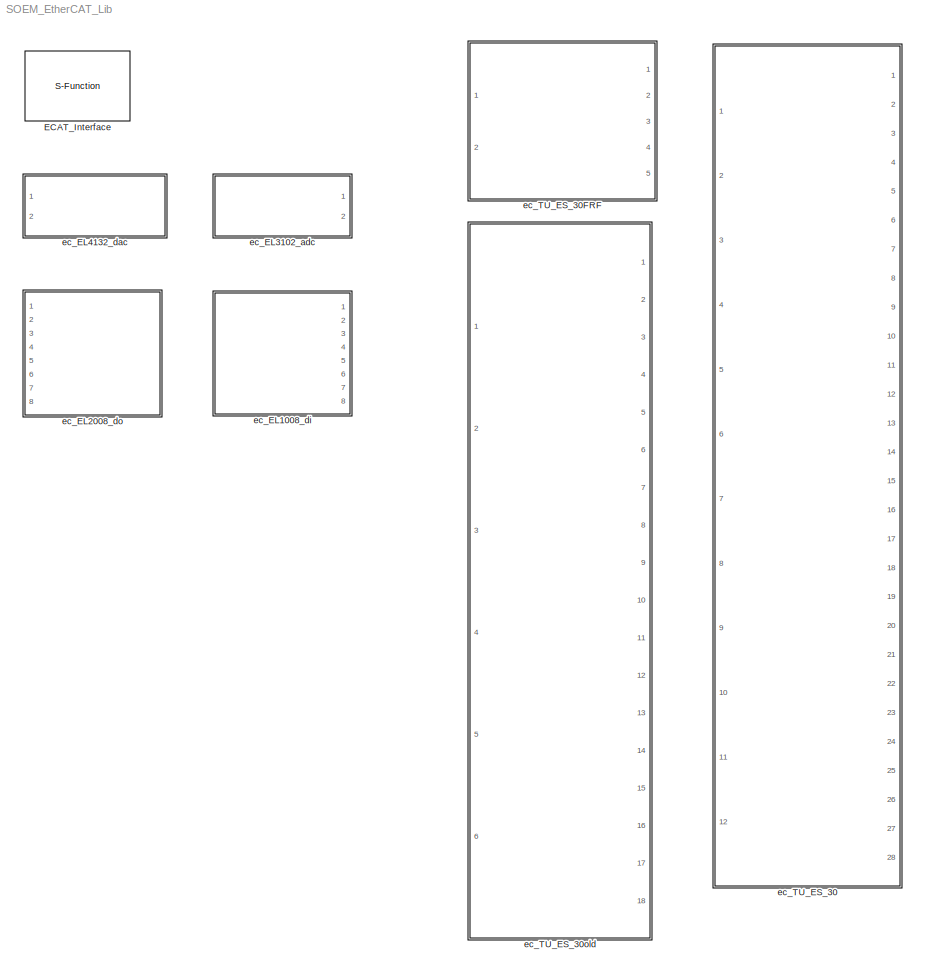
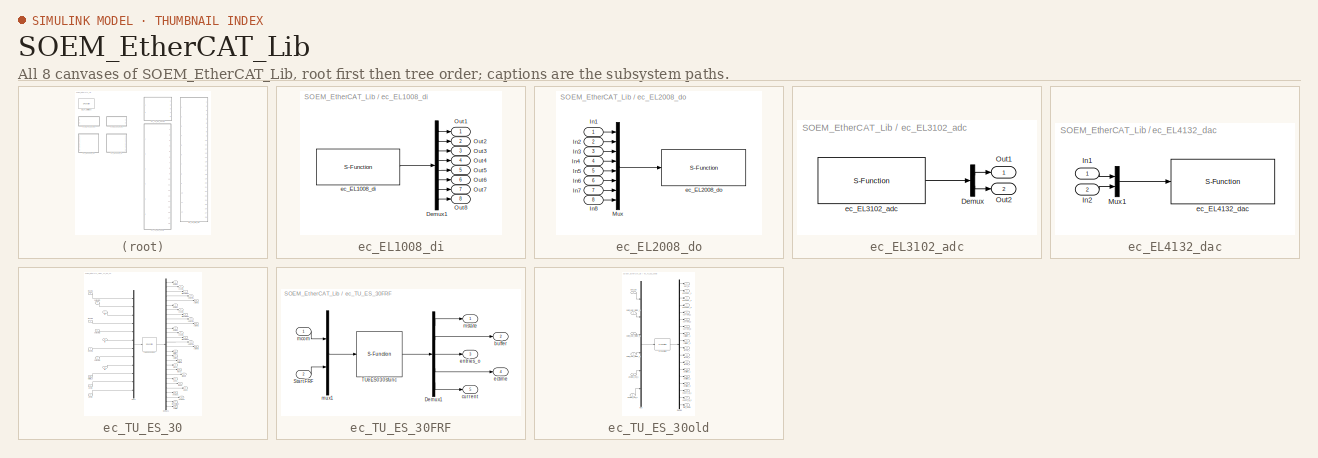
[diagram: thumbnail index - all 8 canvases of the model, root first then tree order]
MODEL SOEM_EtherCAT_Lib
KIND library
BLOCK [S-Function] ECAT_Interface
  EnableBusSupport = off
  FunctionName = ECAT_Interface
  Parameters = IFINTERFACE,TS
  Ports = [0, 1]
  Priority = 0
  SFunctionDeploymentMode = off
  SID = 1
  StopFcn = t_ = timer('Name','DLL_Unload_timer',...\n            'ExecutionMode','singleShot',...\n            'StartDelay',2,...\n            'StopFcn','try;delete(t_);clear(''t_'');catch;disp(''Unloading DLL Failed!'');end;',...\n            'TimerFcn','clear mex;'); \nstart(t_);
BLOCK [SubSystem] ec_EL1008_di
  Ports = [0, 8]
  RequestExecContextInheritance = off
  SID = 2
  Variant = off
BLOCK [Demux] ec_EL1008_di/Demux1
  DisplayOption = bar
  Outputs = 8
  Ports = [1, 8]
  SID = 3
BLOCK [Outport] ec_EL1008_di/Out1
  IconDisplay = Port number
  SID = 5
BLOCK [Outport] ec_EL1008_di/Out2
  IconDisplay = Port number
  Port = 2
  SID = 6
BLOCK [Outport] ec_EL1008_di/Out3
  IconDisplay = Port number
  Port = 3
  SID = 7
BLOCK [Outport] ec_EL1008_di/Out4
  IconDisplay = Port number
  Port = 4
  SID = 8
BLOCK [Outport] ec_EL1008_di/Out5
  IconDisplay = Port number
  Port = 5
  SID = 9
BLOCK [Outport] ec_EL1008_di/Out6
  IconDisplay = Port number
  Port = 6
  SID = 10
BLOCK [Outport] ec_EL1008_di/Out7
  IconDisplay = Port number
  Port = 7
  SID = 11
BLOCK [Outport] ec_EL1008_di/Out8
  IconDisplay = Port number
  Port = 8
  SID = 12
BLOCK [S-Function] ec_EL1008_di/ec_EL1008_di
  EnableBusSupport = off
  FunctionName = ec_EL1008_di
  Parameters = LINKID
  Ports = [0, 1]
  Priority = 1
  SFunctionDeploymentMode = off
  SID = 4
BLOCK [SubSystem] ec_EL2008_do
  Ports = [8]
  RequestExecContextInheritance = off
  SID = 13
  Variant = off
BLOCK [Inport] ec_EL2008_do/In1
  IconDisplay = Port number
  SID = 14
BLOCK [Inport] ec_EL2008_do/In2
  IconDisplay = Port number
  Port = 2
  SID = 15
BLOCK [Inport] ec_EL2008_do/In3
  IconDisplay = Port number
  Port = 3
  SID = 16
BLOCK [Inport] ec_EL2008_do/In4
  IconDisplay = Port number
  Port = 4
  SID = 17
BLOCK [Inport] ec_EL2008_do/In5
  IconDisplay = Port number
  Port = 5
  SID = 18
BLOCK [Inport] ec_EL2008_do/In6
  IconDisplay = Port number
  Port = 6
  SID = 19
BLOCK [Inport] ec_EL2008_do/In7
  IconDisplay = Port number
  Port = 7
  SID = 20
BLOCK [Inport] ec_EL2008_do/In8
  IconDisplay = Port number
  Port = 8
  SID = 21
BLOCK [Mux] ec_EL2008_do/Mux
  DisplayOption = bar
  Inputs = 8
  Ports = [8, 1]
  SID = 22
BLOCK [S-Function] ec_EL2008_do/ec_EL2008_do
  EnableBusSupport = off
  FunctionName = ec_EL2008_do
  Parameters = LINKID
  Ports = [1]
  Priority = 1
  SFunctionDeploymentMode = off
  SID = 23
BLOCK [SubSystem] ec_EL3102_adc
  Ports = [0, 2]
  RequestExecContextInheritance = off
  SID = 24
  Variant = off
BLOCK [Demux] ec_EL3102_adc/Demux
  DisplayOption = bar
  Outputs = 2
  Ports = [1, 2]
  SID = 25
BLOCK [Outport] ec_EL3102_adc/Out1
  IconDisplay = Port number
  SID = 27
BLOCK [Outport] ec_EL3102_adc/Out2
  IconDisplay = Port number
  Port = 2
  SID = 28
BLOCK [S-Function] ec_EL3102_adc/ec_EL3102_adc
  EnableBusSupport = off
  FunctionName = ec_EL3102_adc
  Parameters = LINKID
  Ports = [0, 1]
  Priority = 1
  SFunctionDeploymentMode = off
  SID = 26
BLOCK [SubSystem] ec_EL4132_dac
  Ports = [2]
  RequestExecContextInheritance = off
  SID = 29
  Variant = off
BLOCK [Inport] ec_EL4132_dac/In1
  IconDisplay = Port number
  SID = 30
BLOCK [Inport] ec_EL4132_dac/In2
  IconDisplay = Port number
  Port = 2
  SID = 31
BLOCK [Mux] ec_EL4132_dac/Mux1
  DisplayOption = bar
  Inputs = 2
  Ports = [2, 1]
  SID = 32
BLOCK [S-Function] ec_EL4132_dac/ec_EL4132_dac
  EnableBusSupport = off
  FunctionName = ec_EL4132_dac
  Parameters = LINKID
  Ports = [1]
  Priority = 1
  SFunctionDeploymentMode = off
  SID = 33
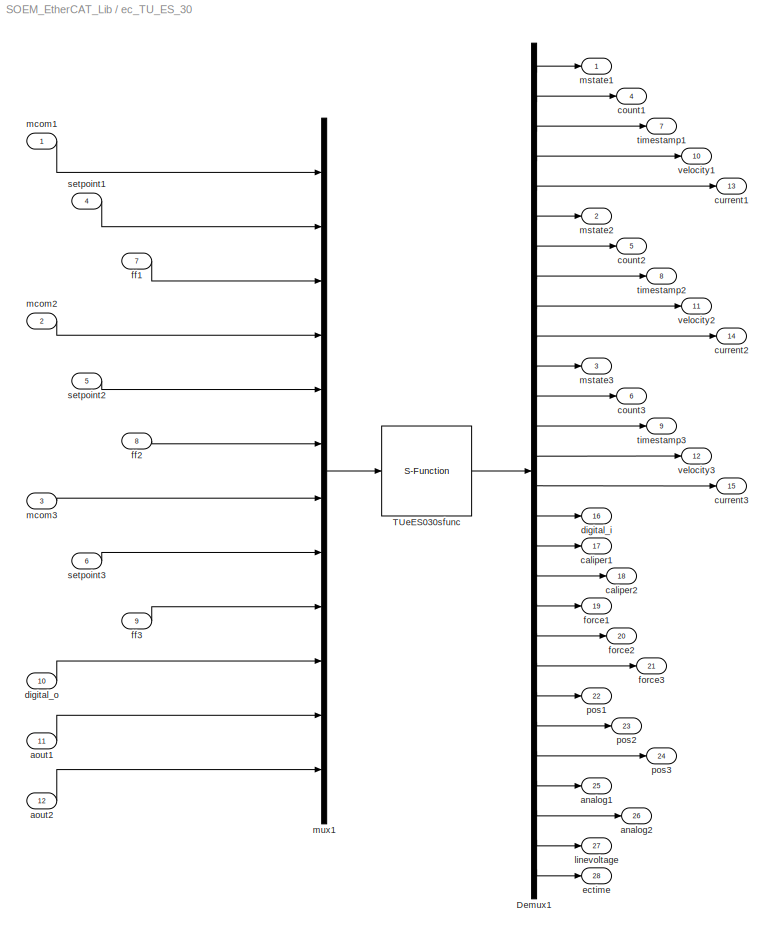
BLOCK [SubSystem] ec_TU_ES_30
  AncestorBlock = SERGIO_Lib/EtherCAT Blocks/ec_TU_ES_30
  Ports = [12, 28]
  RequestExecContextInheritance = off
  SID = 659
  Variant = off
BLOCK [Demux] ec_TU_ES_30/Demux1
  DisplayOption = bar
  Outputs = 28
  Ports = [1, 28]
  SID = 659:8047
BLOCK [S-Function] ec_TU_ES_30/TUeES030sfunc
  EnableBusSupport = off
  FunctionName = ec_TU_ES_030
  Parameters = link_id, slave_num, resistance, kv,pgain,igain,ilimit,encdir,encres,czero
  Ports = [1, 1]
  SFunctionDeploymentMode = off
  SID = 659:297
BLOCK [Outport] ec_TU_ES_30/analog1
  IconDisplay = Port number
  Port = 25
  SID = 659:8072
BLOCK [Outport] ec_TU_ES_30/analog2
  IconDisplay = Port number
  Port = 26
  SID = 659:8073
BLOCK [Inport] ec_TU_ES_30/aout1
  IconDisplay = Port number
  Port = 11
  SID = 659:8045
BLOCK [Inport] ec_TU_ES_30/aout2
  IconDisplay = Port number
  Port = 12
  SID = 659:8046
BLOCK [Outport] ec_TU_ES_30/caliper1
  IconDisplay = Port number
  Port = 17
  SID = 659:8064
BLOCK [Outport] ec_TU_ES_30/caliper2
  IconDisplay = Port number
  Port = 18
  SID = 659:8065
BLOCK [Outport] ec_TU_ES_30/count1
  IconDisplay = Port number
  Port = 4
  SID = 659:8049
BLOCK [Outport] ec_TU_ES_30/count2
  IconDisplay = Port number
  Port = 5
  SID = 659:8054
BLOCK [Outport] ec_TU_ES_30/count3
  IconDisplay = Port number
  Port = 6
  SID = 659:8059
BLOCK [Outport] ec_TU_ES_30/current1
  IconDisplay = Port number
  Port = 13
  SID = 659:8052
BLOCK [Outport] ec_TU_ES_30/current2
  IconDisplay = Port number
  Port = 14
  SID = 659:8057
BLOCK [Outport] ec_TU_ES_30/current3
  IconDisplay = Port number
  Port = 15
  SID = 659:8062
BLOCK [Outport] ec_TU_ES_30/digital_i
  IconDisplay = Port number
  Port = 16
  SID = 659:8063
BLOCK [Inport] ec_TU_ES_30/digital_o
  IconDisplay = Port number
  Port = 10
  SID = 659:8044
BLOCK [Outport] ec_TU_ES_30/ectime
  IconDisplay = Port number
  Port = 28
  SID = 659:8075
BLOCK [Inport] ec_TU_ES_30/ff1
  IconDisplay = Port number
  Port = 7
  SID = 659:8037
BLOCK [Inport] ec_TU_ES_30/ff2
  IconDisplay = Port number
  Port = 8
  SID = 659:8040
BLOCK [Inport] ec_TU_ES_30/ff3
  IconDisplay = Port number
  Port = 9
  SID = 659:8043
BLOCK [Outport] ec_TU_ES_30/force1
  IconDisplay = Port number
  Port = 19
  SID = 659:8066
BLOCK [Outport] ec_TU_ES_30/force2
  IconDisplay = Port number
  Port = 20
  SID = 659:8067
BLOCK [Outport] ec_TU_ES_30/force3
  IconDisplay = Port number
  Port = 21
  SID = 659:8068
BLOCK [Outport] ec_TU_ES_30/linevoltage
  IconDisplay = Port number
  Port = 27
  SID = 659:8074
BLOCK [Inport] ec_TU_ES_30/mcom1
  IconDisplay = Port number
  SID = 659:8035
BLOCK [Inport] ec_TU_ES_30/mcom2
  IconDisplay = Port number
  Port = 2
  SID = 659:8038
BLOCK [Inport] ec_TU_ES_30/mcom3
  IconDisplay = Port number
  Port = 3
  SID = 659:8041
BLOCK [Outport] ec_TU_ES_30/mstate1
  IconDisplay = Port number
  SID = 659:8048
BLOCK [Outport] ec_TU_ES_30/mstate2
  IconDisplay = Port number
  Port = 2
  SID = 659:8053
BLOCK [Outport] ec_TU_ES_30/mstate3
  IconDisplay = Port number
  Port = 3
  SID = 659:8058
BLOCK [Mux] ec_TU_ES_30/mux1
  DisplayOption = bar
  Inputs = 12
  Ports = [12, 1]
  SID = 659:8034
BLOCK [Outport] ec_TU_ES_30/pos1
  IconDisplay = Port number
  Port = 22
  SID = 659:8069
BLOCK [Outport] ec_TU_ES_30/pos2
  IconDisplay = Port number
  Port = 23
  SID = 659:8070
BLOCK [Outport] ec_TU_ES_30/pos3
  IconDisplay = Port number
  Port = 24
  SID = 659:8071
BLOCK [Inport] ec_TU_ES_30/setpoint1
  IconDisplay = Port number
  Port = 4
  SID = 659:8036
BLOCK [Inport] ec_TU_ES_30/setpoint2
  IconDisplay = Port number
  Port = 5
  SID = 659:8039
BLOCK [Inport] ec_TU_ES_30/setpoint3
  IconDisplay = Port number
  Port = 6
  SID = 659:8042
BLOCK [Outport] ec_TU_ES_30/timestamp1
  IconDisplay = Port number
  Port = 7
  SID = 659:8050
BLOCK [Outport] ec_TU_ES_30/timestamp2
  IconDisplay = Port number
  Port = 8
  SID = 659:8055
BLOCK [Outport] ec_TU_ES_30/timestamp3
  IconDisplay = Port number
  Port = 9
  SID = 659:8060
BLOCK [Outport] ec_TU_ES_30/velocity1
  IconDisplay = Port number
  Port = 10
  SID = 659:8051
BLOCK [Outport] ec_TU_ES_30/velocity2
  IconDisplay = Port number
  Port = 11
  SID = 659:8056
BLOCK [Outport] ec_TU_ES_30/velocity3
  IconDisplay = Port number
  Port = 12
  SID = 659:8061
BLOCK [SubSystem] ec_TU_ES_30FRF
  AncestorBlock = SERGIO_Lib/EtherCAT Blocks/ec_TU_ES_30FRF
  Ports = [2, 5]
  RequestExecContextInheritance = off
  SID = 657
  Variant = off
BLOCK [Demux] ec_TU_ES_30FRF/Demux1
  DisplayOption = bar
  Outputs = [1 1 1 1 22]
  Ports = [1, 5]
  SID = 657:8080
BLOCK [Inport] ec_TU_ES_30FRF/Start FRF
  IconDisplay = Port number
  Port = 2
  SID = 657:8078
BLOCK [S-Function] ec_TU_ES_30FRF/TUeES030sfunc
  EnableBusSupport = off
  FunctionName = ec_TU_ES_030FRF
  Parameters = link_id, slave_num, resistance, kv,pgain,igain,ilimit,encdir,encres,czero, setpts,numsets
  Ports = [1, 1]
  SFunctionDeploymentMode = off
  SID = 657:297
BLOCK [Outport] ec_TU_ES_30FRF/buffer
  IconDisplay = Port number
  Port = 2
  SID = 657:8082
BLOCK [Outport] ec_TU_ES_30FRF/current
  IconDisplay = Port number
  Port = 5
  SID = 657:8085
BLOCK [Outport] ec_TU_ES_30FRF/ectime
  IconDisplay = Port number
  Port = 4
  SID = 657:8084
BLOCK [Outport] ec_TU_ES_30FRF/entries_o
  IconDisplay = Port number
  Port = 3
  SID = 657:8083
BLOCK [Inport] ec_TU_ES_30FRF/mcom
  IconDisplay = Port number
  SID = 657:8077
BLOCK [Outport] ec_TU_ES_30FRF/mstate
  IconDisplay = Port number
  SID = 657:8081
BLOCK [Mux] ec_TU_ES_30FRF/mux1
  DisplayOption = bar
  Inputs = 2
  Ports = [2, 1]
  SID = 657:8076
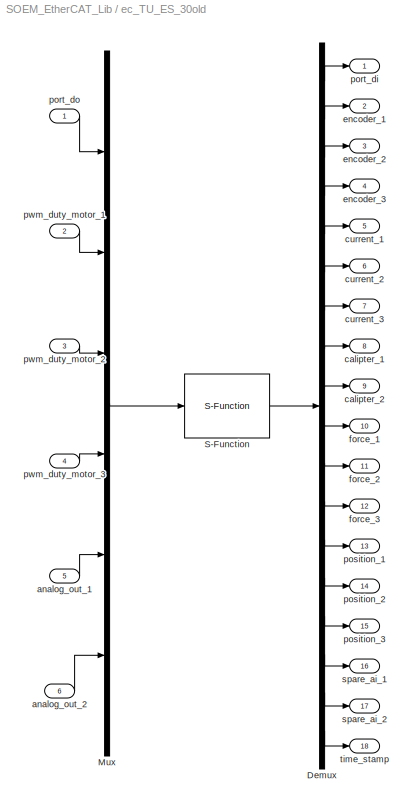
BLOCK [SubSystem] ec_TU_ES_30old
  AncestorBlock = SERGIO_Lib/EtherCAT Blocks/ec_TU_ES_030old
  Ports = [6, 18]
  RequestExecContextInheritance = off
  SID = 658
  Variant = off
BLOCK [Demux] ec_TU_ES_30old/Demux
  DisplayOption = bar
  Outputs = 18
  Ports = [1, 18]
  SID = 658:434
BLOCK [Mux] ec_TU_ES_30old/Mux
  DisplayOption = bar
  Inputs = 6
  Ports = [6, 1]
  SID = 658:435
BLOCK [S-Function] ec_TU_ES_30old/S-Function
  EnableBusSupport = off
  FunctionName = ec_TU_ES_030old
  Parameters = link_id
  Ports = [1, 1]
  SFunctionDeploymentMode = off
  SID = 658:436
BLOCK [Inport] ec_TU_ES_30old/analog_out_1
  IconDisplay = Port number
  Port = 5
  SID = 658:432
BLOCK [Inport] ec_TU_ES_30old/analog_out_2
  IconDisplay = Port number
  Port = 6
  SID = 658:433
BLOCK [Outport] ec_TU_ES_30old/calipter_1
  IconDisplay = Port number
  Port = 8
  SID = 658:444
BLOCK [Outport] ec_TU_ES_30old/calipter_2
  IconDisplay = Port number
  Port = 9
  SID = 658:445
BLOCK [Outport] ec_TU_ES_30old/current_1
  IconDisplay = Port number
  Port = 5
  SID = 658:441
BLOCK [Outport] ec_TU_ES_30old/current_2
  IconDisplay = Port number
  Port = 6
  SID = 658:442
BLOCK [Outport] ec_TU_ES_30old/current_3
  IconDisplay = Port number
  Port = 7
  SID = 658:443
BLOCK [Outport] ec_TU_ES_30old/encoder_1
  IconDisplay = Port number
  Port = 2
  SID = 658:438
BLOCK [Outport] ec_TU_ES_30old/encoder_2
  IconDisplay = Port number
  Port = 3
  SID = 658:439
BLOCK [Outport] ec_TU_ES_30old/encoder_3
  IconDisplay = Port number
  Port = 4
  SID = 658:440
BLOCK [Outport] ec_TU_ES_30old/force_1
  IconDisplay = Port number
  Port = 10
  SID = 658:446
BLOCK [Outport] ec_TU_ES_30old/force_2
  IconDisplay = Port number
  Port = 11
  SID = 658:447
BLOCK [Outport] ec_TU_ES_30old/force_3
  IconDisplay = Port number
  Port = 12
  SID = 658:448
BLOCK [Outport] ec_TU_ES_30old/port_di
  IconDisplay = Port number
  SID = 658:437
BLOCK [Inport] ec_TU_ES_30old/port_do
  IconDisplay = Port number
  SID = 658:428
BLOCK [Outport] ec_TU_ES_30old/position_1
  IconDisplay = Port number
  Port = 13
  SID = 658:449
BLOCK [Outport] ec_TU_ES_30old/position_2
  IconDisplay = Port number
  Port = 14
  SID = 658:450
BLOCK [Outport] ec_TU_ES_30old/position_3
  IconDisplay = Port number
  Port = 15
  SID = 658:451
BLOCK [Inport] ec_TU_ES_30old/pwm_duty_motor_1
  IconDisplay = Port number
  Port = 2
  SID = 658:429
BLOCK [Inport] ec_TU_ES_30old/pwm_duty_motor_2
  IconDisplay = Port number
  Port = 3
  SID = 658:430
BLOCK [Inport] ec_TU_ES_30old/pwm_duty_motor_3
  IconDisplay = Port number
  Port = 4
  SID = 658:431
BLOCK [Outport] ec_TU_ES_30old/spare_ai_1
  IconDisplay = Port number
  Port = 16
  SID = 658:452
BLOCK [Outport] ec_TU_ES_30old/spare_ai_2
  IconDisplay = Port number
  Port = 17
  SID = 658:453
BLOCK [Outport] ec_TU_ES_30old/time_stamp
  IconDisplay = Port number
  Port = 18
  SID = 658:454
LINE ec_EL1008_di/Demux1:1 -> ec_EL1008_di/Out1:1
LINE ec_EL1008_di/Demux1:2 -> ec_EL1008_di/Out2:1
LINE ec_EL1008_di/Demux1:3 -> ec_EL1008_di/Out3:1
LINE ec_EL1008_di/Demux1:4 -> ec_EL1008_di/Out4:1
LINE ec_EL1008_di/Demux1:5 -> ec_EL1008_di/Out5:1
LINE ec_EL1008_di/Demux1:6 -> ec_EL1008_di/Out6:1
LINE ec_EL1008_di/Demux1:7 -> ec_EL1008_di/Out7:1
LINE ec_EL1008_di/Demux1:8 -> ec_EL1008_di/Out8:1
LINE ec_EL1008_di/ec_EL1008_di:1 -> ec_EL1008_di/Demux1:1
LINE ec_EL2008_do/In1:1 -> ec_EL2008_do/Mux:1
LINE ec_EL2008_do/In2:1 -> ec_EL2008_do/Mux:2
LINE ec_EL2008_do/In3:1 -> ec_EL2008_do/Mux:3
LINE ec_EL2008_do/In4:1 -> ec_EL2008_do/Mux:4
LINE ec_EL2008_do/In5:1 -> ec_EL2008_do/Mux:5
LINE ec_EL2008_do/In6:1 -> ec_EL2008_do/Mux:6
LINE ec_EL2008_do/In7:1 -> ec_EL2008_do/Mux:7
LINE ec_EL2008_do/In8:1 -> ec_EL2008_do/Mux:8
LINE ec_EL2008_do/Mux:1 -> ec_EL2008_do/ec_EL2008_do:1
LINE ec_EL3102_adc/Demux:1 -> ec_EL3102_adc/Out1:1
LINE ec_EL3102_adc/Demux:2 -> ec_EL3102_adc/Out2:1
LINE ec_EL3102_adc/ec_EL3102_adc:1 -> ec_EL3102_adc/Demux:1
LINE ec_EL4132_dac/In1:1 -> ec_EL4132_dac/Mux1:1
LINE ec_EL4132_dac/In2:1 -> ec_EL4132_dac/Mux1:2
LINE ec_EL4132_dac/Mux1:1 -> ec_EL4132_dac/ec_EL4132_dac:1
LINE ec_TU_ES_30/Demux1:1 -> ec_TU_ES_30/mstate1:1
LINE ec_TU_ES_30/Demux1:10 -> ec_TU_ES_30/current2:1
LINE ec_TU_ES_30/Demux1:11 -> ec_TU_ES_30/mstate3:1
LINE ec_TU_ES_30/Demux1:12 -> ec_TU_ES_30/count3:1
LINE ec_TU_ES_30/Demux1:13 -> ec_TU_ES_30/timestamp3:1
LINE ec_TU_ES_30/Demux1:14 -> ec_TU_ES_30/velocity3:1
LINE ec_TU_ES_30/Demux1:15 -> ec_TU_ES_30/current3:1
LINE ec_TU_ES_30/Demux1:16 -> ec_TU_ES_30/digital_i:1
LINE ec_TU_ES_30/Demux1:17 -> ec_TU_ES_30/caliper1:1
LINE ec_TU_ES_30/Demux1:18 -> ec_TU_ES_30/caliper2:1
LINE ec_TU_ES_30/Demux1:19 -> ec_TU_ES_30/force1:1
LINE ec_TU_ES_30/Demux1:2 -> ec_TU_ES_30/count1:1
LINE ec_TU_ES_30/Demux1:20 -> ec_TU_ES_30/force2:1
LINE ec_TU_ES_30/Demux1:21 -> ec_TU_ES_30/force3:1
LINE ec_TU_ES_30/Demux1:22 -> ec_TU_ES_30/pos1:1
LINE ec_TU_ES_30/Demux1:23 -> ec_TU_ES_30/pos2:1
LINE ec_TU_ES_30/Demux1:24 -> ec_TU_ES_30/pos3:1
LINE ec_TU_ES_30/Demux1:25 -> ec_TU_ES_30/analog1:1
LINE ec_TU_ES_30/Demux1:26 -> ec_TU_ES_30/analog2:1
LINE ec_TU_ES_30/Demux1:27 -> ec_TU_ES_30/linevoltage:1
LINE ec_TU_ES_30/Demux1:28 -> ec_TU_ES_30/ectime:1
LINE ec_TU_ES_30/Demux1:3 -> ec_TU_ES_30/timestamp1:1
LINE ec_TU_ES_30/Demux1:4 -> ec_TU_ES_30/velocity1:1
LINE ec_TU_ES_30/Demux1:5 -> ec_TU_ES_30/current1:1
LINE ec_TU_ES_30/Demux1:6 -> ec_TU_ES_30/mstate2:1
LINE ec_TU_ES_30/Demux1:7 -> ec_TU_ES_30/count2:1
LINE ec_TU_ES_30/Demux1:8 -> ec_TU_ES_30/timestamp2:1
LINE ec_TU_ES_30/Demux1:9 -> ec_TU_ES_30/velocity2:1
LINE ec_TU_ES_30/TUeES030sfunc:1 -> ec_TU_ES_30/Demux1:1
LINE ec_TU_ES_30/aout1:1 -> ec_TU_ES_30/mux1:11
LINE ec_TU_ES_30/aout2:1 -> ec_TU_ES_30/mux1:12
LINE ec_TU_ES_30/digital_o:1 -> ec_TU_ES_30/mux1:10
LINE ec_TU_ES_30/ff1:1 -> ec_TU_ES_30/mux1:3
LINE ec_TU_ES_30/ff2:1 -> ec_TU_ES_30/mux1:6
LINE ec_TU_ES_30/ff3:1 -> ec_TU_ES_30/mux1:9
LINE ec_TU_ES_30/mcom1:1 -> ec_TU_ES_30/mux1:1
LINE ec_TU_ES_30/mcom2:1 -> ec_TU_ES_30/mux1:4
LINE ec_TU_ES_30/mcom3:1 -> ec_TU_ES_30/mux1:7
LINE ec_TU_ES_30/mux1:1 -> ec_TU_ES_30/TUeES030sfunc:1
LINE ec_TU_ES_30/setpoint1:1 -> ec_TU_ES_30/mux1:2
LINE ec_TU_ES_30/setpoint2:1 -> ec_TU_ES_30/mux1:5
LINE ec_TU_ES_30/setpoint3:1 -> ec_TU_ES_30/mux1:8
LINE ec_TU_ES_30FRF/Demux1:1 -> ec_TU_ES_30FRF/mstate:1
LINE ec_TU_ES_30FRF/Demux1:2 -> ec_TU_ES_30FRF/buffer:1
LINE ec_TU_ES_30FRF/Demux1:3 -> ec_TU_ES_30FRF/entries_o:1
LINE ec_TU_ES_30FRF/Demux1:4 -> ec_TU_ES_30FRF/ectime:1
LINE ec_TU_ES_30FRF/Demux1:5 -> ec_TU_ES_30FRF/current:1
LINE ec_TU_ES_30FRF/Start FRF:1 -> ec_TU_ES_30FRF/mux1:2
LINE ec_TU_ES_30FRF/TUeES030sfunc:1 -> ec_TU_ES_30FRF/Demux1:1
LINE ec_TU_ES_30FRF/mcom:1 -> ec_TU_ES_30FRF/mux1:1
LINE ec_TU_ES_30FRF/mux1:1 -> ec_TU_ES_30FRF/TUeES030sfunc:1
LINE ec_TU_ES_30old/Demux:1 -> ec_TU_ES_30old/port_di:1
LINE ec_TU_ES_30old/Demux:10 -> ec_TU_ES_30old/force_1:1
LINE ec_TU_ES_30old/Demux:11 -> ec_TU_ES_30old/force_2:1
LINE ec_TU_ES_30old/Demux:12 -> ec_TU_ES_30old/force_3:1
LINE ec_TU_ES_30old/Demux:13 -> ec_TU_ES_30old/position_1:1
LINE ec_TU_ES_30old/Demux:14 -> ec_TU_ES_30old/position_2:1
LINE ec_TU_ES_30old/Demux:15 -> ec_TU_ES_30old/position_3:1
LINE ec_TU_ES_30old/Demux:16 -> ec_TU_ES_30old/spare_ai_1:1
LINE ec_TU_ES_30old/Demux:17 -> ec_TU_ES_30old/spare_ai_2:1
LINE ec_TU_ES_30old/Demux:18 -> ec_TU_ES_30old/time_stamp:1
LINE ec_TU_ES_30old/Demux:2 -> ec_TU_ES_30old/encoder_1:1
LINE ec_TU_ES_30old/Demux:3 -> ec_TU_ES_30old/encoder_2:1
LINE ec_TU_ES_30old/Demux:4 -> ec_TU_ES_30old/encoder_3:1
LINE ec_TU_ES_30old/Demux:5 -> ec_TU_ES_30old/current_1:1
LINE ec_TU_ES_30old/Demux:6 -> ec_TU_ES_30old/current_2:1
LINE ec_TU_ES_30old/Demux:7 -> ec_TU_ES_30old/current_3:1
LINE ec_TU_ES_30old/Demux:8 -> ec_TU_ES_30old/calipter_1:1
LINE ec_TU_ES_30old/Demux:9 -> ec_TU_ES_30old/calipter_2:1
LINE ec_TU_ES_30old/Mux:1 -> ec_TU_ES_30old/S-Function:1
LINE ec_TU_ES_30old/S-Function:1 -> ec_TU_ES_30old/Demux:1
LINE ec_TU_ES_30old/analog_out_1:1 -> ec_TU_ES_30old/Mux:5
LINE ec_TU_ES_30old/analog_out_2:1 -> ec_TU_ES_30old/Mux:6
LINE ec_TU_ES_30old/port_do:1 -> ec_TU_ES_30old/Mux:1
LINE ec_TU_ES_30old/pwm_duty_motor_1:1 -> ec_TU_ES_30old/Mux:2
LINE ec_TU_ES_30old/pwm_duty_motor_2:1 -> ec_TU_ES_30old/Mux:3
LINE ec_TU_ES_30old/pwm_duty_motor_3:1 -> ec_TU_ES_30old/Mux:4
